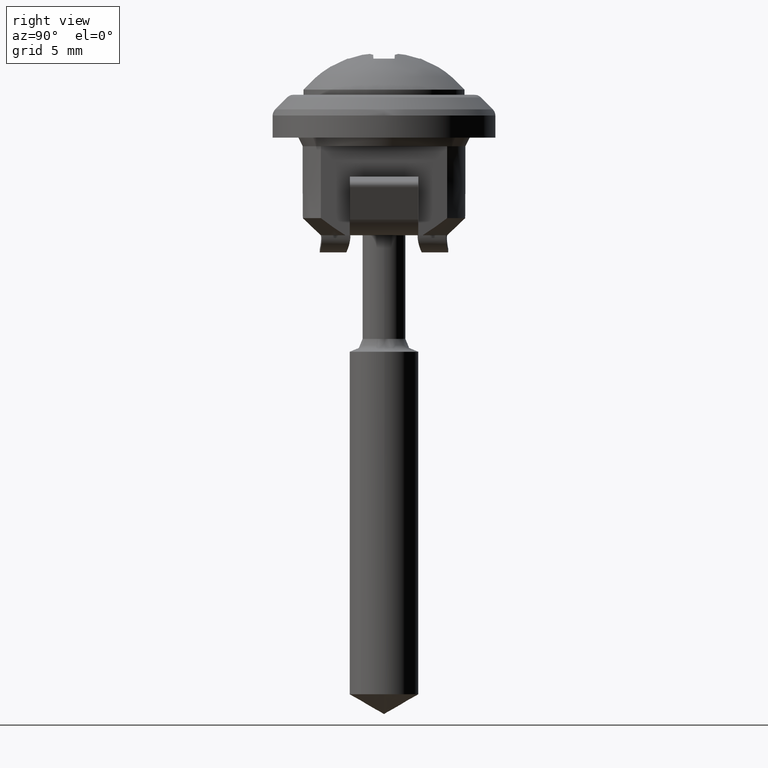
[diagram: clean part render]
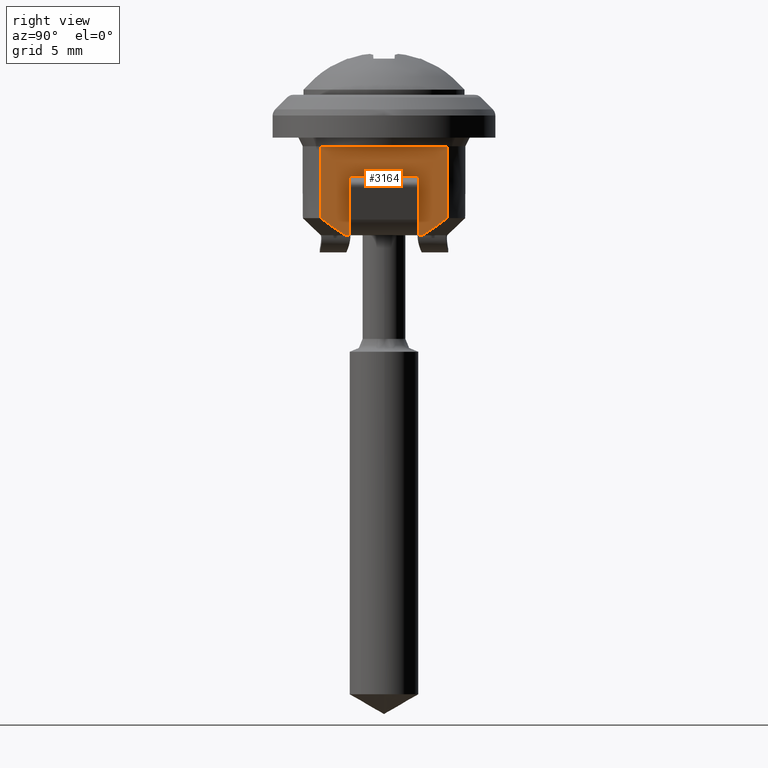
[diagram: same view with one face highlighted and labeled with its STEP entity id]
A machine part, right view. The second image highlights one B-rep face of the part: STEP entity #3164.
In plain terms, the highlighted face is a freeform B-spline surface patch.
Its self-contained STEP definition (entity closure, byte-faithful):
#1954=CARTESIAN_POINT('',(3.0,-2.000000000000115,-7.200000000000000));
#1955=VERTEX_POINT('',#1954);
#1968=CARTESIAN_POINT('',(2.999999999985905,-2.000000000000070,-4.780000000000000));
#1969=VERTEX_POINT('',#1968);
#1975=CARTESIAN_POINT('',(3.0,-2.000000000000115,-7.200000000000000));
#1976=CARTESIAN_POINT('',(2.999999999985905,-2.000000000000070,-4.780000000000000));
#1977=QUASI_UNIFORM_CURVE('',1,(#1975,#1976),.UNSPECIFIED.,.F.,.U.);
#1978=EDGE_CURVE('',#1955,#1969,#1977,.T.);
#2017=CARTESIAN_POINT('',(2.999999999985905,2.0,-4.780000000000000));
#2018=VERTEX_POINT('',#2017);
#2024=CARTESIAN_POINT('',(2.999999999985905,-2.000000000000070,-4.780000000000000));
#2025=CARTESIAN_POINT('',(2.999999999985905,2.0,-4.780000000000000));
#2026=QUASI_UNIFORM_CURVE('',1,(#2024,#2025),.UNSPECIFIED.,.F.,.U.);
#2027=EDGE_CURVE('',#1969,#2018,#2026,.T.);
#2045=CARTESIAN_POINT('',(2.999999999985905,2.0,-7.200000000000000));
#2046=VERTEX_POINT('',#2045);
#2052=CARTESIAN_POINT('',(2.999999999985905,2.0,-4.780000000000000));
#2053=CARTESIAN_POINT('',(2.999999999985905,2.0,-7.200000000000000));
#2054=QUASI_UNIFORM_CURVE('',1,(#2052,#2053),.UNSPECIFIED.,.F.,.U.);
#2055=EDGE_CURVE('',#2018,#2046,#2054,.T.);
#3079=CARTESIAN_POINT('',(2.999999999999950,-4.050634674944851,-2.740260010078608));
#3080=CARTESIAN_POINT('',(2.999999999999950,-4.050634674944851,-8.459740129396261));
#3081=CARTESIAN_POINT('',(2.999999999999950,4.050634872501882,-2.740260010078608));
#3082=CARTESIAN_POINT('',(2.999999999999950,4.050634872501881,-8.459740129396261));
#3083=B_SPLINE_SURFACE_WITH_KNOTS('',1,1,((#3079,#3081),(#3080,#3082)),.UNSPECIFIED.,.F.,.F.,.U.,(2,2),(2,2),(0.0,5.719480119317653),(0.0,8.101269547446734),.UNSPECIFIED.);
#3084=ORIENTED_EDGE('',*,*,#2055,.T.);
#3085=CARTESIAN_POINT('',(2.999999999999950,2.0,-8.200000000000001));
#3086=VERTEX_POINT('',#3085);
#3087=CARTESIAN_POINT('',(2.999999999999950,2.0,-8.200000000000001));
#3088=CARTESIAN_POINT('',(2.999999999985905,2.0,-7.200000000000000));
#3089=QUASI_UNIFORM_CURVE('',1,(#3087,#3088),.UNSPECIFIED.,.F.,.U.);
#3090=EDGE_CURVE('',#3086,#2046,#3089,.T.);
#3091=ORIENTED_EDGE('',*,*,#3090,.F.);
#3092=CARTESIAN_POINT('',(2.999999999999950,2.249999999896615,-8.200000000000001));
#3093=VERTEX_POINT('',#3092);
#3094=CARTESIAN_POINT('',(2.999999999999950,2.249999999896615,-8.200000000000001));
#3095=CARTESIAN_POINT('',(2.999999999999950,2.0,-8.200000000000001));
#3096=QUASI_UNIFORM_CURVE('',1,(#3094,#3095),.UNSPECIFIED.,.F.,.U.);
#3097=EDGE_CURVE('',#3093,#3086,#3096,.T.);
#3098=ORIENTED_EDGE('',*,*,#3097,.F.);
#3099=CARTESIAN_POINT('',(3.0,3.682729965637500,-7.199999999961760));
#3100=VERTEX_POINT('',#3099);
#3101=CARTESIAN_POINT('',(2.999999999999950,2.249999999896615,-8.200000000000001));
#3102=CARTESIAN_POINT('',(2.999999999999952,2.305676525595778,-8.166592009491099));
#3103=CARTESIAN_POINT('',(2.999999999999954,2.361049122988402,-8.132569822717295));
#3104=CARTESIAN_POINT('',(2.999999999999961,2.562801186505443,-8.006022180886022));
#3105=CARTESIAN_POINT('',(2.999999999999965,2.707457700193962,-7.910231067643282));
#3106=CARTESIAN_POINT('',(2.999999999999979,3.134355675555365,-7.616221052741909));
#3107=CARTESIAN_POINT('',(2.999999999999990,3.410848509825921,-7.410790995271403));
#3108=CARTESIAN_POINT('',(3.0,3.682729965637500,-7.199999999961760));
#3109=B_SPLINE_CURVE_WITH_KNOTS('',3,(#3101,#3102,#3103,#3104,#3105,#3106,#3107,#3108),.UNSPECIFIED.,.F.,.U.,(4,2,2,4),(0.789014900506086,0.812500000000000,0.875000000000000,1.0),.UNSPECIFIED.);
#3110=EDGE_CURVE('',#3093,#3100,#3109,.T.);
#3111=ORIENTED_EDGE('',*,*,#3110,.T.);
#3112=CARTESIAN_POINT('',(3.000000000000055,3.682729965651915,-3.0));
#3113=VERTEX_POINT('',#3112);
#3114=CARTESIAN_POINT('',(3.000000000000055,3.682729965651915,-3.0));
#3115=CARTESIAN_POINT('',(3.0,3.682729965637500,-7.199999999961760));
#3116=QUASI_UNIFORM_CURVE('',1,(#3114,#3115),.UNSPECIFIED.,.F.,.U.);
#3117=EDGE_CURVE('',#3113,#3100,#3116,.T.);
#3118=ORIENTED_EDGE('',*,*,#3117,.F.);
#3119=CARTESIAN_POINT('',(3.000000000000055,-3.682729965651915,-3.0));
#3120=VERTEX_POINT('',#3119);
#3121=CARTESIAN_POINT('',(3.000000000000055,3.682729965651915,-3.0));
#3122=CARTESIAN_POINT('',(3.000000000000055,-3.682729965651915,-3.0));
#3123=QUASI_UNIFORM_CURVE('',1,(#3121,#3122),.UNSPECIFIED.,.F.,.U.);
#3124=EDGE_CURVE('',#3113,#3120,#3123,.T.);
#3125=ORIENTED_EDGE('',*,*,#3124,.T.);
#3126=CARTESIAN_POINT('',(3.0,-3.682729965637500,-7.199999999961760));
#3127=VERTEX_POINT('',#3126);
#3128=CARTESIAN_POINT('',(3.0,-3.682729965637500,-7.199999999961760));
#3129=CARTESIAN_POINT('',(3.000000000000055,-3.682729965651915,-3.0));
#3130=QUASI_UNIFORM_CURVE('',1,(#3128,#3129),.UNSPECIFIED.,.F.,.U.);
#3131=EDGE_CURVE('',#3127,#3120,#3130,.T.);
#3132=ORIENTED_EDGE('',*,*,#3131,.F.);
#3133=CARTESIAN_POINT('',(2.999999999999950,-2.249999999896615,-8.200000000000001));
#3134=VERTEX_POINT('',#3133);
#3135=CARTESIAN_POINT('',(3.0,-3.682729965637500,-7.199999999961760));
#3136=CARTESIAN_POINT('',(2.999999999999995,-3.545941852293688,-7.306052394666203));
#3137=CARTESIAN_POINT('',(2.999999999999990,-3.407989844789093,-7.410669754854038));
#3138=CARTESIAN_POINT('',(2.999999999999979,-3.129053687123988,-7.616165965735368));
#3139=CARTESIAN_POINT('',(2.999999999999975,-2.988038360426707,-7.717066776258887));
#3140=CARTESIAN_POINT('',(2.999999999999965,-2.703012093657741,-7.913214407135456));
#3141=CARTESIAN_POINT('',(2.999999999999961,-2.558903232643150,-8.008546205933023));
#3142=CARTESIAN_POINT('',(2.999999999999954,-2.358738995770676,-8.133987385631299));
#3143=CARTESIAN_POINT('',(2.999999999999952,-2.304534363988753,-8.167276990373619));
#3144=CARTESIAN_POINT('',(2.999999999999950,-2.249999999896615,-8.200000000000001));
#3145=B_SPLINE_CURVE_WITH_KNOTS('',3,(#3135,#3136,#3137,#3138,#3139,#3140,#3141,#3142,#3143,#3144),.UNSPECIFIED.,.F.,.U.,(4,2,2,2,4),(0.0,0.062500000000000,0.125000000000000,0.187500000000000,0.210540527305649),.UNSPECIFIED.);
#3146=EDGE_CURVE('',#3127,#3134,#3145,.T.);
#3147=ORIENTED_EDGE('',*,*,#3146,.T.);
#3148=CARTESIAN_POINT('',(2.999999999999950,-2.000000000000115,-8.200000000000001));
#3149=VERTEX_POINT('',#3148);
#3150=CARTESIAN_POINT('',(2.999999999999950,-2.000000000000115,-8.200000000000001));
#3151=CARTESIAN_POINT('',(2.999999999999950,-2.249999999896615,-8.200000000000001));
#3152=QUASI_UNIFORM_CURVE('',1,(#3150,#3151),.UNSPECIFIED.,.F.,.U.);
#3153=EDGE_CURVE('',#3149,#3134,#3152,.T.);
#3154=ORIENTED_EDGE('',*,*,#3153,.F.);
#3155=CARTESIAN_POINT('',(2.999999999999950,-2.000000000000115,-8.200000000000001));
#3156=CARTESIAN_POINT('',(3.0,-2.000000000000115,-7.200000000000000));
#3157=QUASI_UNIFORM_CURVE('',1,(#3155,#3156),.UNSPECIFIED.,.F.,.U.);
#3158=EDGE_CURVE('',#3149,#1955,#3157,.T.);
#3159=ORIENTED_EDGE('',*,*,#3158,.T.);
#3160=ORIENTED_EDGE('',*,*,#1978,.T.);
#3161=ORIENTED_EDGE('',*,*,#2027,.T.);
#3162=EDGE_LOOP('',(#3084,#3091,#3098,#3111,#3118,#3125,#3132,#3147,#3154,#3159,#3160,#3161));
#3163=FACE_OUTER_BOUND('',#3162,.T.);
#3164=ADVANCED_FACE('',(#3163),#3083,.T.);